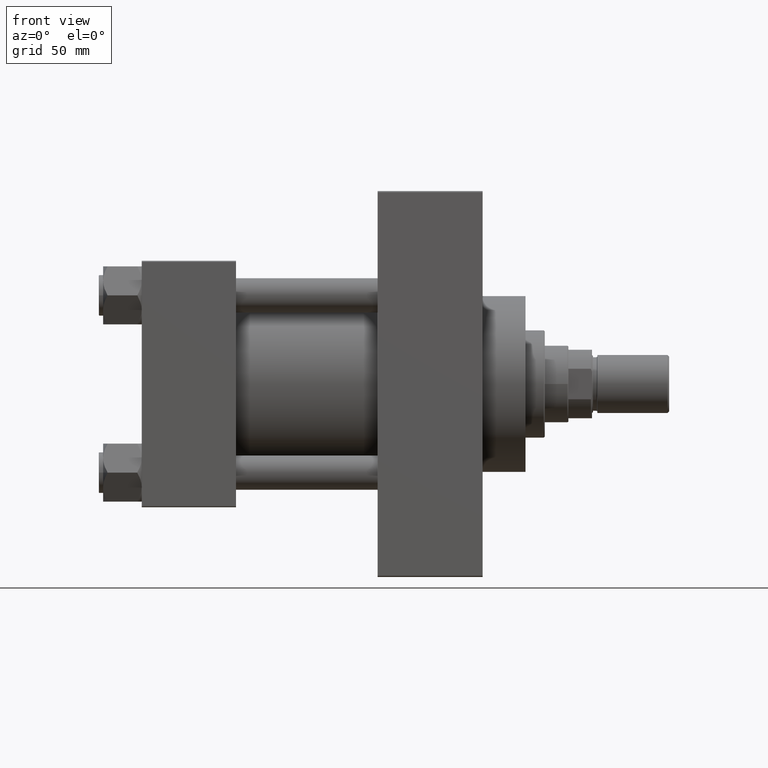
[diagram: clean part render]
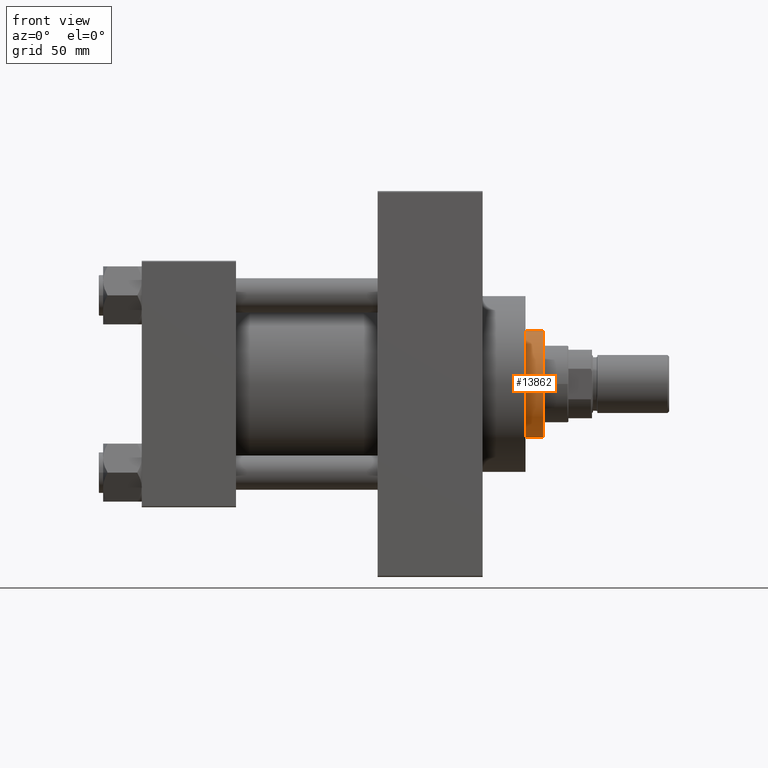
[diagram: same view with one face highlighted and labeled with its STEP entity id]
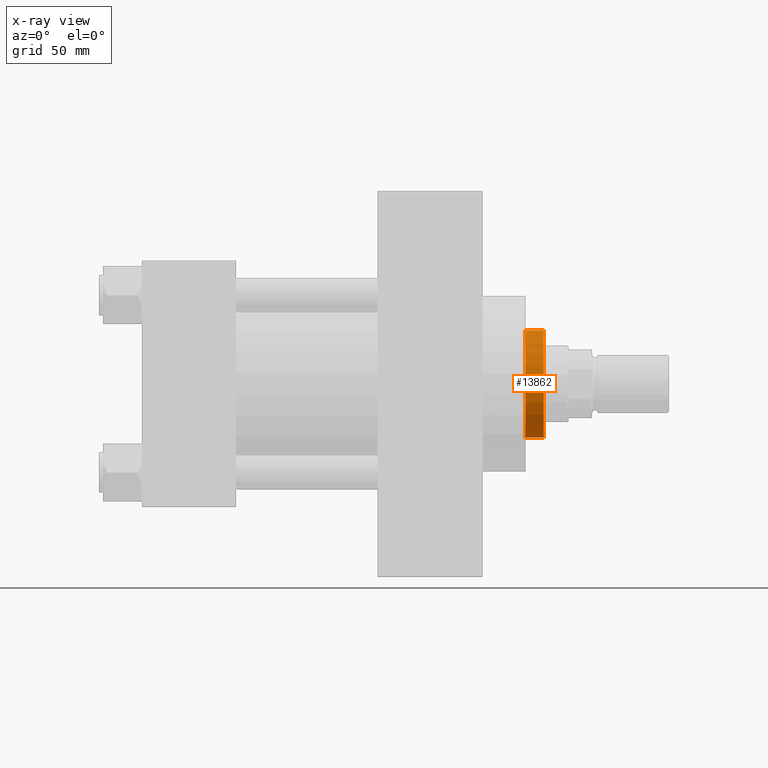
[diagram: x-ray of the same camera — body ghosted, the highlighted face saturated]
A machine part, front view. The second image highlights one B-rep face of the part: STEP entity #13862.
The next image is the same camera in x-ray: the body ghosted, the highlighted face saturated — about 0% of this face is hidden behind the body in this view.
In plain terms, the highlighted cylindrical surface (partial cylindrical patch) has radius 25 mm, axis along (-1, 0, 0).
Its self-contained STEP definition (entity closure, byte-faithful):
#475 = EDGE_LOOP ( 'NONE', ( #40768, #40035, #44320, #31635 ) ) ;
#1094 = CYLINDRICAL_SURFACE ( 'NONE', #30487, 25.00000000000000000 ) ;
#6805 = EDGE_CURVE ( 'NONE', #15223, #44570, #32676, .T. ) ;
#7969 = EDGE_CURVE ( 'NONE', #38336, #37945, #9049, .T. ) ;
#9049 = LINE ( 'NONE', #16558, #21231 ) ;
#10523 = DIRECTION ( 'NONE',  ( -0.000000000000000000, -0.000000000000000000, -1.000000000000000000 ) ) ;
#11221 = CARTESIAN_POINT ( 'NONE',  ( 25.00000000000000000, 3.061616997868383043E-15, 52.25999999999999801 ) ) ;
#11316 = EDGE_CURVE ( 'NONE', #44570, #37945, #15926, .T. ) ;
#12397 = CARTESIAN_POINT ( 'NONE',  ( 25.00000000000000000, 3.061616997868383043E-15, 43.25999999999999801 ) ) ;
#13862 = ADVANCED_FACE ( 'NONE', ( #44897 ), #1094, .T. ) ;
#15223 = VERTEX_POINT ( 'NONE', #18590 ) ;
#15926 = CIRCLE ( 'NONE', #43137, 25.00000000000000000 ) ;
#15940 = CARTESIAN_POINT ( 'NONE',  ( 0.000000000000000000, 0.000000000000000000, 52.25999999999999801 ) ) ;
#16558 = CARTESIAN_POINT ( 'NONE',  ( -25.00000000000000000, 0.000000000000000000, 52.25999999999999801 ) ) ;
#18590 = CARTESIAN_POINT ( 'NONE',  ( 25.00000000000000000, 3.061616997868383043E-15, 51.75999999999996959 ) ) ;
#20445 = DIRECTION ( 'NONE',  ( -0.000000000000000000, -0.000000000000000000, -1.000000000000000000 ) ) ;
#21231 = VECTOR ( 'NONE', #20445, 1000.000000000000000 ) ;
#23558 = DIRECTION ( 'NONE',  ( 1.000000000000000000, 0.000000000000000000, 0.000000000000000000 ) ) ;
#24408 = CARTESIAN_POINT ( 'NONE',  ( 0.000000000000000000, 0.000000000000000000, 51.75999999999996959 ) ) ;
#26889 = CIRCLE ( 'NONE', #36193, 25.00000000000000000 ) ;
#27140 = EDGE_CURVE ( 'NONE', #38336, #15223, #26889, .T. ) ;
#30393 = CARTESIAN_POINT ( 'NONE',  ( 0.000000000000000000, 0.000000000000000000, 43.25999999999999801 ) ) ;
#30487 = AXIS2_PLACEMENT_3D ( 'NONE', #15940, #41991, #34213 ) ;
#30602 = DIRECTION ( 'NONE',  ( 0.000000000000000000, 0.000000000000000000, -1.000000000000000000 ) ) ;
#31635 = ORIENTED_EDGE ( 'NONE', *, *, #7969, .F. ) ;
#32099 = VECTOR ( 'NONE', #10523, 1000.000000000000000 ) ;
#32676 = LINE ( 'NONE', #11221, #32099 ) ;
#34029 = DIRECTION ( 'NONE',  ( 0.000000000000000000, 0.000000000000000000, 1.000000000000000000 ) ) ;
#34213 = DIRECTION ( 'NONE',  ( -1.000000000000000000, 0.000000000000000000, 0.000000000000000000 ) ) ;
#36193 = AXIS2_PLACEMENT_3D ( 'NONE', #24408, #30602, #45426 ) ;
#37945 = VERTEX_POINT ( 'NONE', #46569 ) ;
#38336 = VERTEX_POINT ( 'NONE', #48164 ) ;
#40035 = ORIENTED_EDGE ( 'NONE', *, *, #6805, .T. ) ;
#40768 = ORIENTED_EDGE ( 'NONE', *, *, #27140, .T. ) ;
#41991 = DIRECTION ( 'NONE',  ( -0.000000000000000000, -0.000000000000000000, -1.000000000000000000 ) ) ;
#43137 = AXIS2_PLACEMENT_3D ( 'NONE', #30393, #34029, #23558 ) ;
#44320 = ORIENTED_EDGE ( 'NONE', *, *, #11316, .T. ) ;
#44570 = VERTEX_POINT ( 'NONE', #12397 ) ;
#44897 = FACE_OUTER_BOUND ( 'NONE', #475, .T. ) ;
#45426 = DIRECTION ( 'NONE',  ( 1.000000000000000000, 0.000000000000000000, 0.000000000000000000 ) ) ;
#46569 = CARTESIAN_POINT ( 'NONE',  ( -25.00000000000000000, 0.000000000000000000, 43.25999999999999801 ) ) ;
#48164 = CARTESIAN_POINT ( 'NONE',  ( -25.00000000000000000, 0.000000000000000000, 51.75999999999996959 ) ) ;